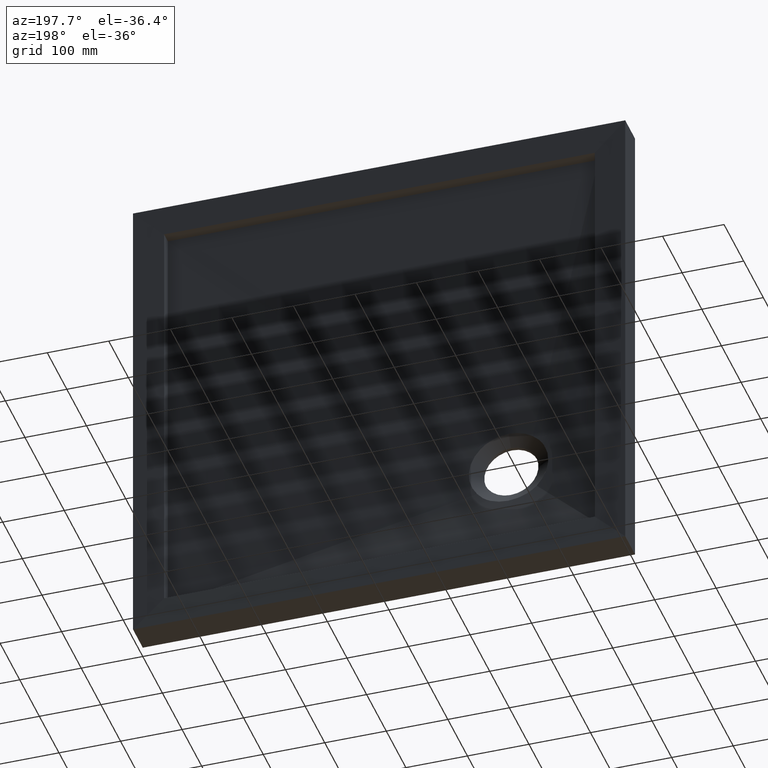
[diagram: clean part render]
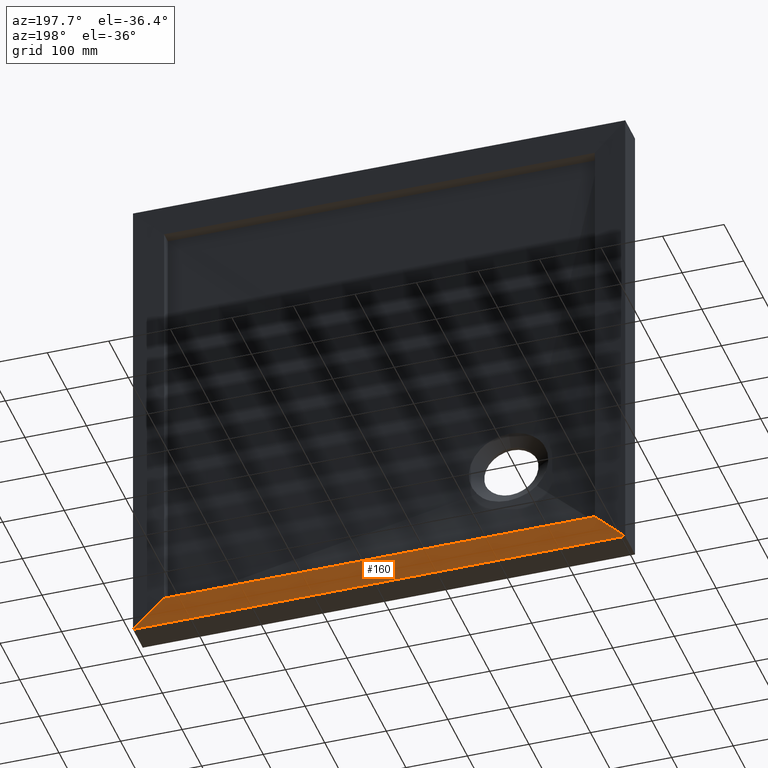
[diagram: same view with one face highlighted and labeled with its STEP entity id]
A machine part, auxiliary view. The second image highlights one B-rep face of the part: STEP entity #160.
In plain terms, the highlighted planar face has unit normal (-0, 0.9994, 0.0349).
Its self-contained STEP definition (entity closure, byte-faithful):
#10 = PLANE ( 'NONE',  #948 ) ;
#47 = DIRECTION ( 'NONE',  ( -0.7068913075831635400, -0.02468518840782791100, 0.7068913075831637600 ) ) ;
#51 = FACE_OUTER_BOUND ( 'NONE', #188, .T. ) ;
#64 = CARTESIAN_POINT ( 'NONE',  ( 349.9999999999999400, 48.25745360236189200, -349.9999999999999400 ) ) ;
#72 = VECTOR ( 'NONE', #349, 1000.000000000000000 ) ;
#79 = EDGE_CURVE ( 'NONE', #627, #573, #345, .T. ) ;
#151 = ORIENTED_EDGE ( 'NONE', *, *, #227, .F. ) ;
#160 = ADVANCED_FACE ( 'NONE', ( #51 ), #10, .T. ) ;
#186 = CARTESIAN_POINT ( 'NONE',  ( 399.9000000000050400, 50.00000000000000000, -399.9000000000050400 ) ) ;
#188 = EDGE_LOOP ( 'NONE', ( #924, #528, #151, #771 ) ) ;
#220 = CARTESIAN_POINT ( 'NONE',  ( 349.9999999999999400, 48.25745360236189200, -349.9999999999999400 ) ) ;
#227 = EDGE_CURVE ( 'NONE', #573, #295, #719, .T. ) ;
#232 = DIRECTION ( 'NONE',  ( -0.7068913075831643200, 0.02468518840782788300, -0.7068913075831632100 ) ) ;
#282 = VERTEX_POINT ( 'NONE', #186 ) ;
#286 = LINE ( 'NONE', #353, #428 ) ;
#295 = VERTEX_POINT ( 'NONE', #909 ) ;
#328 = DIRECTION ( 'NONE',  ( -0.0000000000000000000, 0.9993908270190959800, 0.03489949670249546700 ) ) ;
#340 = CARTESIAN_POINT ( 'NONE',  ( -350.0000000000001700, 48.25745360236189200, -349.9999999999999400 ) ) ;
#345 = LINE ( 'NONE', #340, #354 ) ;
#349 = DIRECTION ( 'NONE',  ( 1.000000000000000000, 0.0000000000000000000, 0.0000000000000000000 ) ) ;
#353 = CARTESIAN_POINT ( 'NONE',  ( 0.2132754843554018900, 36.04263202427952700, -0.2132754843553463800 ) ) ;
#354 = VECTOR ( 'NONE', #589, 1000.000000000000000 ) ;
#355 = LINE ( 'NONE', #563, #72 ) ;
#358 = EDGE_CURVE ( 'NONE', #282, #627, #286, .T. ) ;
#393 = DIRECTION ( 'NONE',  ( 1.000000000000000000, 0.0000000000000000000, 0.0000000000000000000 ) ) ;
#428 = VECTOR ( 'NONE', #47, 1000.000000000000100 ) ;
#528 = ORIENTED_EDGE ( 'NONE', *, *, #601, .F. ) ;
#563 = CARTESIAN_POINT ( 'NONE',  ( 349.9999999999998900, 50.00000000000000000, -399.9000000000050400 ) ) ;
#573 = VERTEX_POINT ( 'NONE', #663 ) ;
#589 = DIRECTION ( 'NONE',  ( -1.000000000000000000, 0.0000000000000000000, 0.0000000000000000000 ) ) ;
#601 = EDGE_CURVE ( 'NONE', #295, #282, #355, .T. ) ;
#627 = VERTEX_POINT ( 'NONE', #220 ) ;
#663 = CARTESIAN_POINT ( 'NONE',  ( -350.0000000000001700, 48.25745360236189200, -349.9999999999999400 ) ) ;
#719 = LINE ( 'NONE', #840, #756 ) ;
#756 = VECTOR ( 'NONE', #232, 1000.000000000000100 ) ;
#771 = ORIENTED_EDGE ( 'NONE', *, *, #79, .F. ) ;
#840 = CARTESIAN_POINT ( 'NONE',  ( -0.2132754843550688200, 36.04263202427953400, -0.2132754843554018900 ) ) ;
#909 = CARTESIAN_POINT ( 'NONE',  ( -399.9000000000053200, 50.00000000000000000, -399.9000000000050400 ) ) ;
#924 = ORIENTED_EDGE ( 'NONE', *, *, #358, .F. ) ;
#948 = AXIS2_PLACEMENT_3D ( 'NONE', #64, #328, #393 ) ;